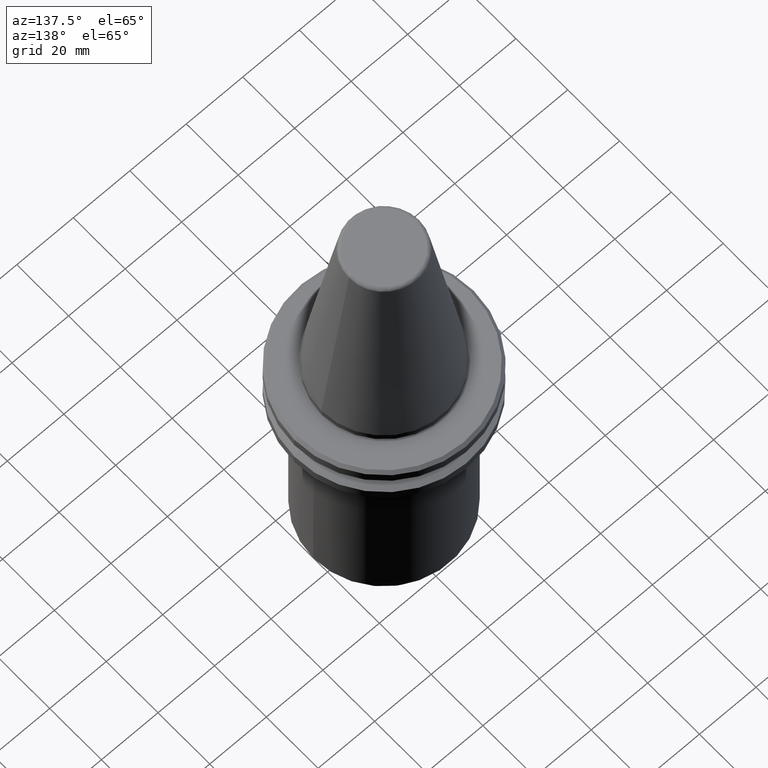
[diagram: clean part render]
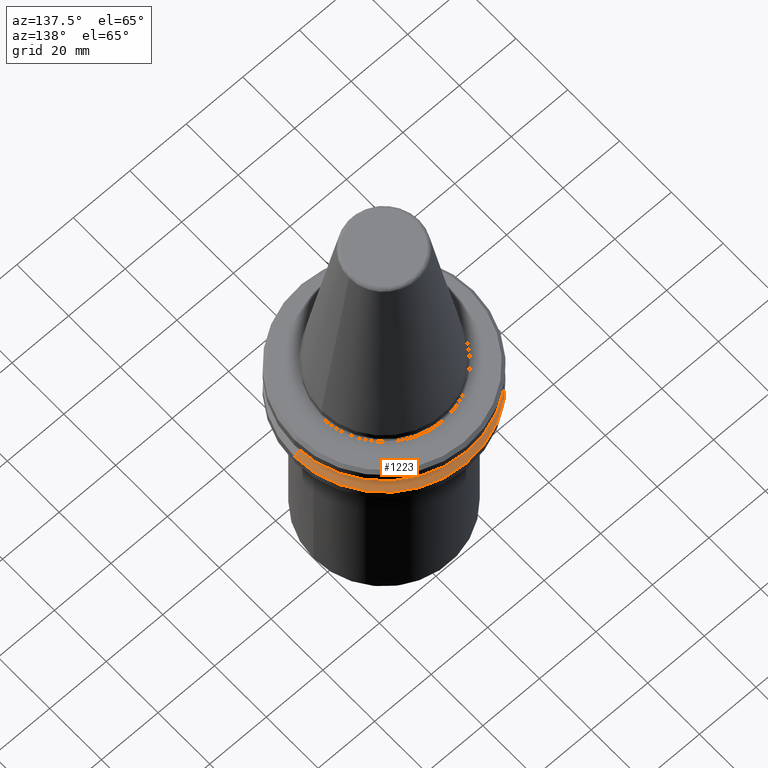
[diagram: same view with one face highlighted and labeled with its STEP entity id]
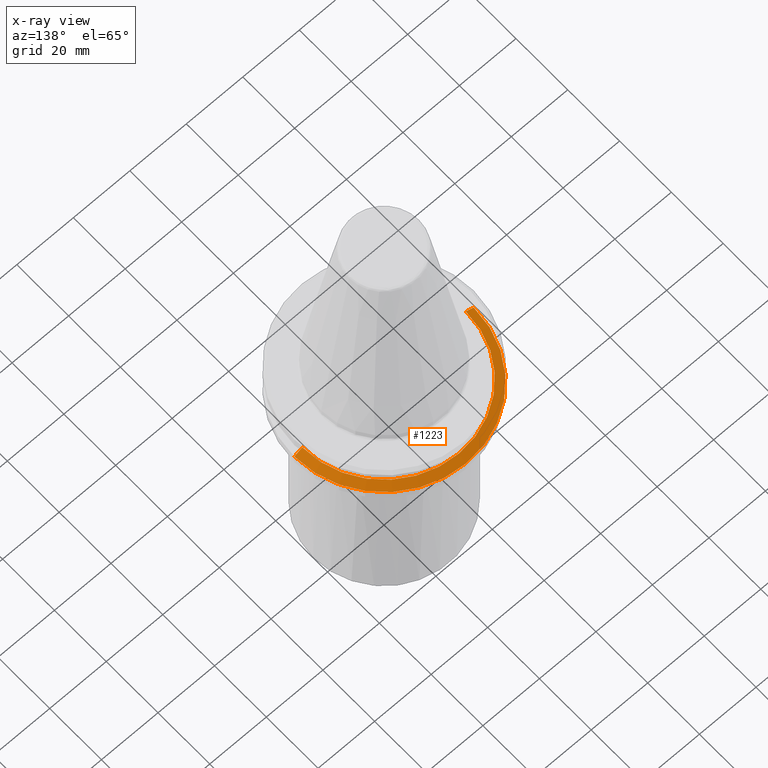
[diagram: x-ray of the same camera — body ghosted, the highlighted face saturated]
A machine part, auxiliary view. The second image highlights one B-rep face of the part: STEP entity #1223.
The next image is the same camera in x-ray: the body ghosted, the highlighted face saturated — about 0% of this face is hidden behind the body in this view.
In plain terms, the highlighted conical surface has half-angle 60 deg.
Its self-contained STEP definition (entity closure, byte-faithful):
#14 = EDGE_CURVE ( 'NONE', #1505, #1046, #15, .T. ) ;
#15 = LINE ( 'NONE', #1203, #19 ) ;
#19 = VECTOR ( 'NONE', #1205, 999.9999999999998900 ) ;
#45 = CARTESIAN_POINT ( 'NONE',  ( 28.94089653438085100, 3.716245608910635500E-015, -13.00000000000001100 ) ) ;
#67 = DIRECTION ( 'NONE',  ( 0.8660254037844420400, 1.060575238724911000E-016, -0.4999999999999943900 ) ) ;
#146 = DIRECTION ( 'NONE',  ( -1.000000000000000000, 0.0000000000000000000, 5.463695987328526400E-017 ) ) ;
#148 = DIRECTION ( 'NONE',  ( -0.0000000000000000000, -0.0000000000000000000, 1.000000000000000000 ) ) ;
#151 = CARTESIAN_POINT ( 'NONE',  ( 0.0000000000000000000, 0.0000000000000000000, -14.62183664205671200 ) ) ;
#183 = CIRCLE ( 'NONE', #1432, 31.75000000000000000 ) ;
#201 = ORIENTED_EDGE ( 'NONE', *, *, #596, .T. ) ;
#270 = CARTESIAN_POINT ( 'NONE',  ( 31.75000000000000000, 3.888253587292846500E-015, -14.62183664205671200 ) ) ;
#284 = DIRECTION ( 'NONE',  ( 0.0000000000000000000, 0.0000000000000000000, -1.000000000000000000 ) ) ;
#303 = DIRECTION ( 'NONE',  ( -1.000000000000000000, 0.0000000000000000000, 0.0000000000000000000 ) ) ;
#351 = CARTESIAN_POINT ( 'NONE',  ( 0.0000000000000000000, 0.0000000000000000000, -14.62183664205671200 ) ) ;
#379 = ORIENTED_EDGE ( 'NONE', *, *, #1297, .T. ) ;
#463 = VERTEX_POINT ( 'NONE', #45 ) ;
#551 = ORIENTED_EDGE ( 'NONE', *, *, #14, .F. ) ;
#596 = EDGE_CURVE ( 'NONE', #463, #1256, #1167, .T. ) ;
#622 = CARTESIAN_POINT ( 'NONE',  ( 0.0000000000000000000, 0.0000000000000000000, -13.00000000000001100 ) ) ;
#667 = CARTESIAN_POINT ( 'NONE',  ( -28.94089653438085100, 0.0000000000000000000, -13.00000000000001100 ) ) ;
#698 = CIRCLE ( 'NONE', #1409, 28.94089653438085100 ) ;
#716 = ORIENTED_EDGE ( 'NONE', *, *, #860, .T. ) ;
#792 = DIRECTION ( 'NONE',  ( 0.0000000000000000000, 0.0000000000000000000, -1.000000000000000000 ) ) ;
#860 = EDGE_CURVE ( 'NONE', #1505, #463, #698, .T. ) ;
#863 = CONICAL_SURFACE ( 'NONE', #1073, 31.75000000000000000, 1.047197551196604300 ) ;
#1043 = DIRECTION ( 'NONE',  ( -1.000000000000000000, 0.0000000000000000000, 0.0000000000000000000 ) ) ;
#1046 = VERTEX_POINT ( 'NONE', #1400 ) ;
#1073 = AXIS2_PLACEMENT_3D ( 'NONE', #351, #284, #303 ) ;
#1167 = LINE ( 'NONE', #1185, #1516 ) ;
#1185 = CARTESIAN_POINT ( 'NONE',  ( 31.75000000000000000, 3.888253587292846500E-015, -14.62183664205671200 ) ) ;
#1203 = CARTESIAN_POINT ( 'NONE',  ( -31.75000000000000000, 0.0000000000000000000, -14.62183664205671200 ) ) ;
#1205 = DIRECTION ( 'NONE',  ( -0.8660254037844420400, 0.0000000000000000000, -0.4999999999999943900 ) ) ;
#1223 = ADVANCED_FACE ( 'NONE', ( #1426 ), #863, .T. ) ;
#1256 = VERTEX_POINT ( 'NONE', #270 ) ;
#1297 = EDGE_CURVE ( 'NONE', #1256, #1046, #183, .T. ) ;
#1400 = CARTESIAN_POINT ( 'NONE',  ( -31.75000000000000000, 0.0000000000000000000, -14.62183664205671200 ) ) ;
#1409 = AXIS2_PLACEMENT_3D ( 'NONE', #622, #792, #1043 ) ;
#1426 = FACE_OUTER_BOUND ( 'NONE', #1445, .T. ) ;
#1432 = AXIS2_PLACEMENT_3D ( 'NONE', #151, #148, #146 ) ;
#1445 = EDGE_LOOP ( 'NONE', ( #716, #201, #379, #551 ) ) ;
#1505 = VERTEX_POINT ( 'NONE', #667 ) ;
#1516 = VECTOR ( 'NONE', #67, 999.9999999999998900 ) ;